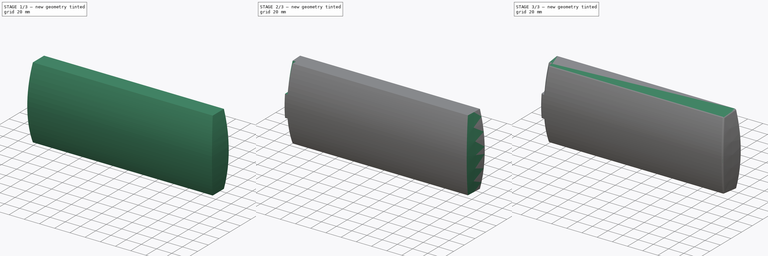
[diagram: build sequence overview — one tinted view per stage of 3, left to right]
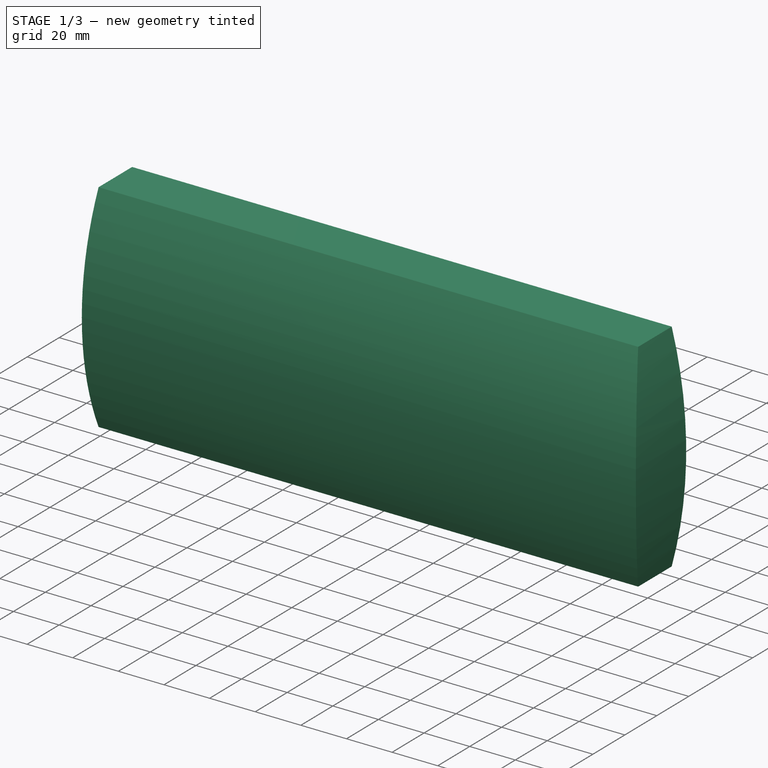
[diagram: stage 1 of 3 — iso view after this stage's code; geometry added in this stage tinted green]
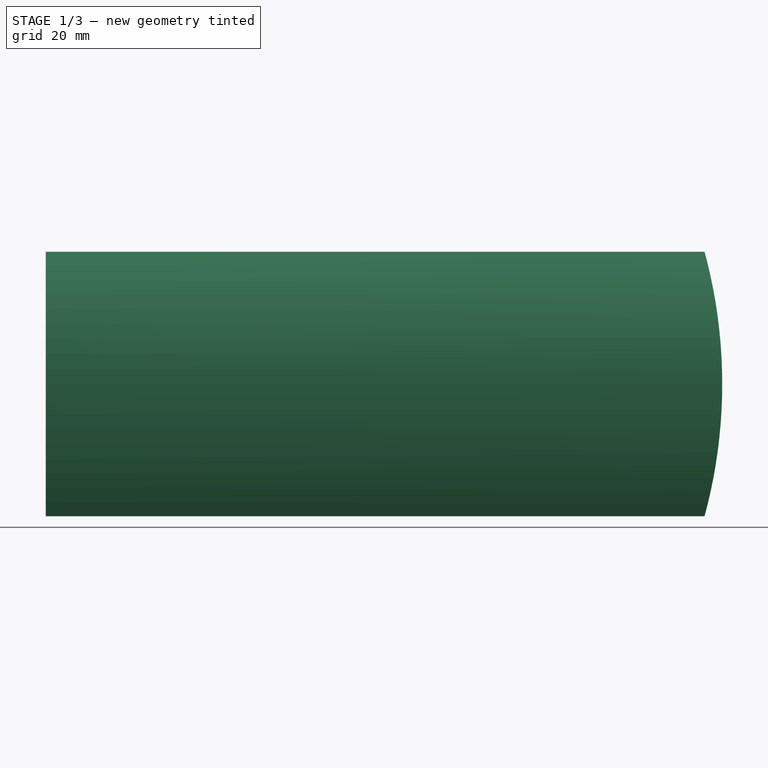
[diagram: stage 1 of 3 — front view after this stage's code; geometry added in this stage tinted green]
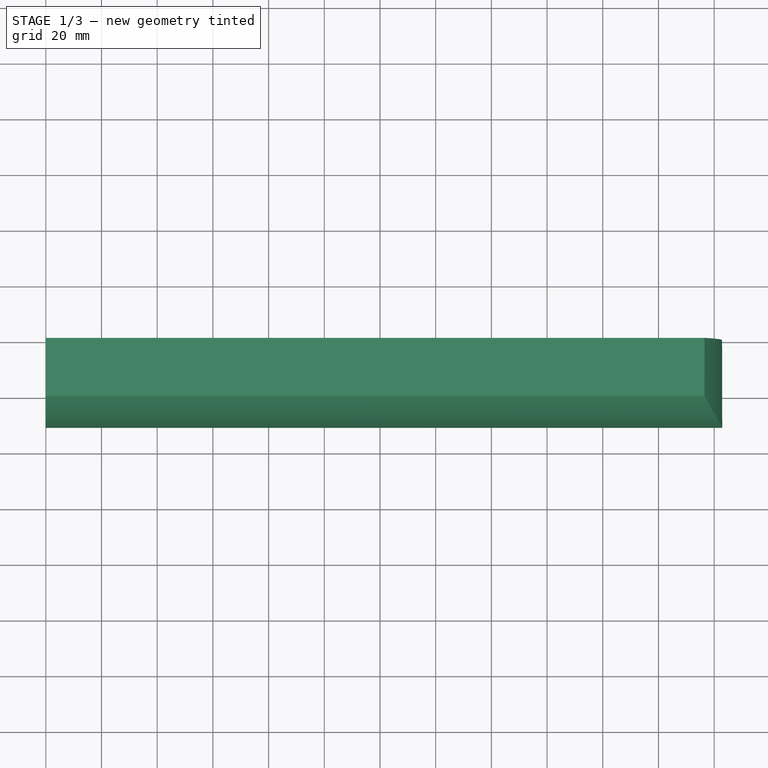
[diagram: stage 1 of 3 — top view after this stage's code; geometry added in this stage tinted green]
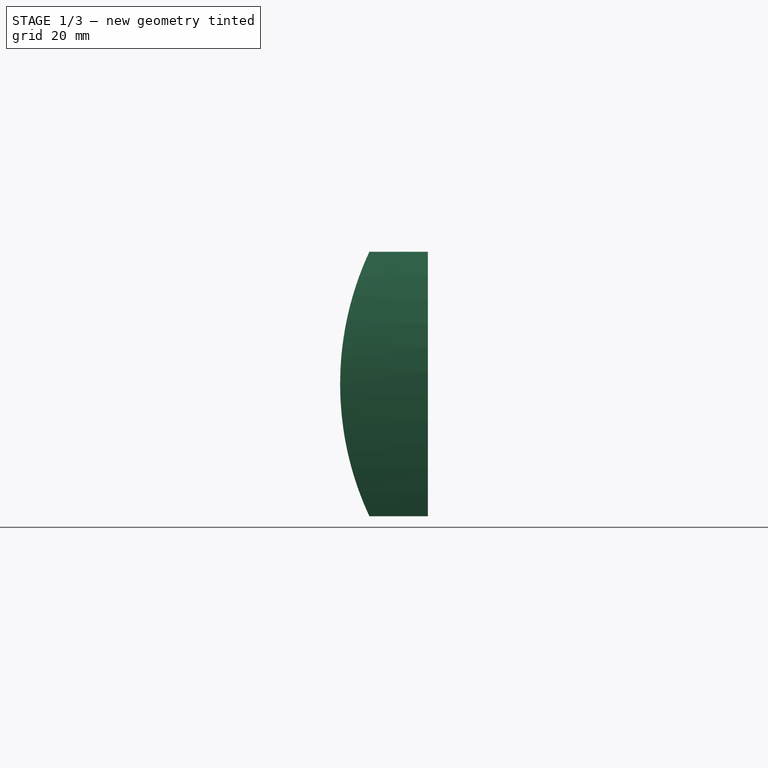
[diagram: stage 1 of 3 — right view after this stage's code; geometry added in this stage tinted green]
FCSTD DOCUMENT  (FreeCAD 0.16R6704 (Git))
Label: speaker-front-2
License: All rights reserved
LicenseURL: http://en.wikipedia.org/wiki/All_rights_reserved
objects: Sketcher::SketchObject×3, PartDesign::Draft×3, PartDesign::Pocket×2, PartDesign::Pad×1, Part::Fillet×1
note: 13 computed .brp shape members not serialized (recipe doc carries the construction recipe); baked Part::Feature solids carry a one-line shape summary decoded from their .brp

FEATURE [Sketcher::SketchObject] Sketch
  Placement = pos=(0,0,0) rot=(1,0,0;1.5708rad)
  sketch-geometry (8):
    g0: LineSegment StartX=0 StartY=0 StartZ=0 EndX=236.53 EndY=0 EndZ=0
    g1: LineSegment StartX=236.53 StartY=95 StartZ=0 EndX=0 EndY=95 EndZ=0
    g2: LineSegment StartX=0 StartY=95 StartZ=0 EndX=0 EndY=0 EndZ=0
    g3: GeomPoint [constr] X=242.88 Y=47.5 Z=0
    g4: ArcOfCircle CenterX=62.0475 CenterY=47.5 CenterZ=0 NormalX=0 NormalY=0 NormalZ=1 Radius=180.832 StartAngle=6.01739 EndAngle=6.54898
    g5: GeomPoint [constr] X=118.265 Y=95 Z=0
    g6: GeomPoint [constr] X=118.265 Y=0 Z=0
    g7: GeomPoint [constr] X=0 Y=47.5 Z=0
  constraints (20):
    c: Coincident(g1,g2)
    c: Coincident(g2,g0)
    c: Horizontal(g0)
    c: Horizontal(g1)
    c: Vertical(g2)
    c: Coincident(g0,g-1)
    c: Coincident(g4,g0)
    c: PointOnObject(g3,g4)
    c: PointOnObject(g5,g1)
    c: PointOnObject(g6,g0)
    c: PointOnObject(g7,g2)
    c: DistanceY(g6,g5) = 95
    c: Symmetric(g1,g1,g5)
    c: Symmetric(g-1,g0,g6)
    c: Symmetric(g-1,g1,g7)
    c: DistanceX(g7,g3) = 242.88
    c: DistanceY(g3,g7) = 0
    c: DistanceX(g1,g3) = 6.35
    c: DistanceX(g0,g1) = 0
    c: Coincident(g4,g1)
FEATURE [PartDesign::Pad] Pad
  Length = 31.5
  Length2 = 100
  Placement = pos=(0,0,0) rot=(1,0,0;1.5708rad)
  Sketch = -> Sketch
  Type = 0
FEATURE [Sketcher::SketchObject] Sketch003
  ExternalGeometry = -> [Pad]
  Placement = pos=(0,0,0) rot=(0.707107,0,-0.707107;3.14159rad)
  Support = -> Pad [Face4]
  sketch-geometry (7):
    g0: GeomPoint [constr] X=-95 Y=21 Z=0
    g1: GeomPoint [constr] X=0 Y=21 Z=0
    g2: GeomPoint [constr] X=-47.5 Y=31.5 Z=0
    g3: ArcOfCircle CenterX=-47.5 CenterY=-81.1905 CenterZ=0 NormalX=0 NormalY=0 NormalZ=1 Radius=112.69 StartAngle=1.13569 EndAngle=2.0059
    g4: LineSegment StartX=-95 StartY=21 StartZ=0 EndX=-95 EndY=61 EndZ=0
    g5: LineSegment StartX=0 StartY=21 StartZ=0 EndX=0 EndY=61 EndZ=0
    g6: LineSegment StartX=0 StartY=61 StartZ=0 EndX=-95 EndY=61 EndZ=0
  constraints (17):
    c: PointOnObject(g0,g-4)
    c: PointOnObject(g1,g-5)
    c: DistanceY(g0,g-4) = 10.5
    c: DistanceY(g1,g-5) = 10.5
    c: PointOnObject(g2,g-6)
    c: Symmetric(g-6,g-6,g2)
    c: Coincident(g3,g0)
    c: Coincident(g3,g1)
    c: PointOnObject(g2,g3)
    c: Coincident(g4,g0)
    c: Vertical(g4)
    c: Coincident(g5,g1)
    c: Vertical(g5)
    c: Coincident(g6,g5)
    c: Coincident(g6,g4)
    c: Horizontal(g6)
    c: DistanceY(g0,g4) = 40
FEATURE [PartDesign::Pocket] Pocket001
  Length = 250
  Placement = pos=(0,0,0) rot=(1,0,0;1.5708rad)
  Sketch = -> Sketch003
  Type = 0
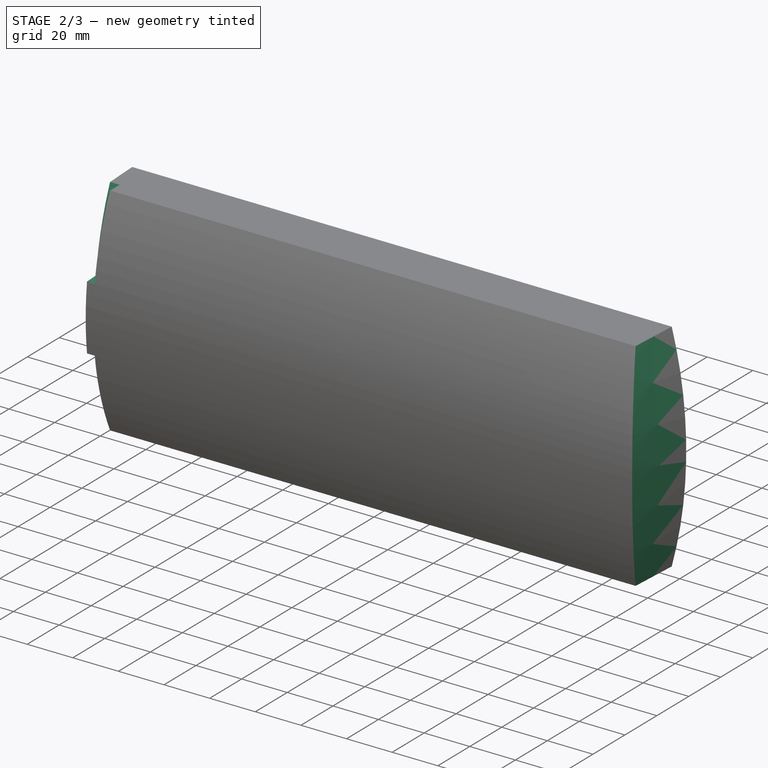
[diagram: stage 2 of 3 — iso view after this stage's code; geometry added in this stage tinted green]
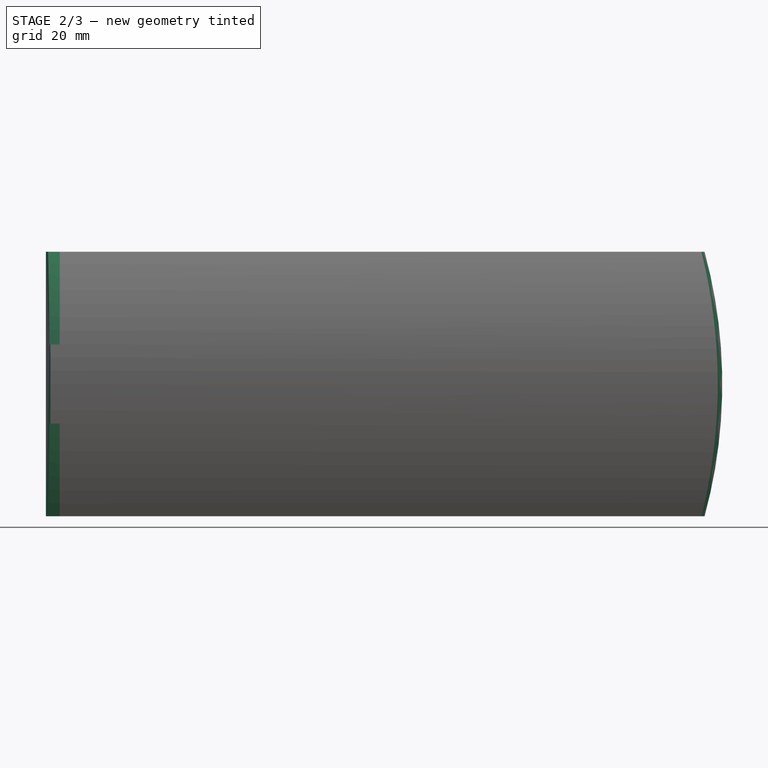
[diagram: stage 2 of 3 — front view after this stage's code; geometry added in this stage tinted green]
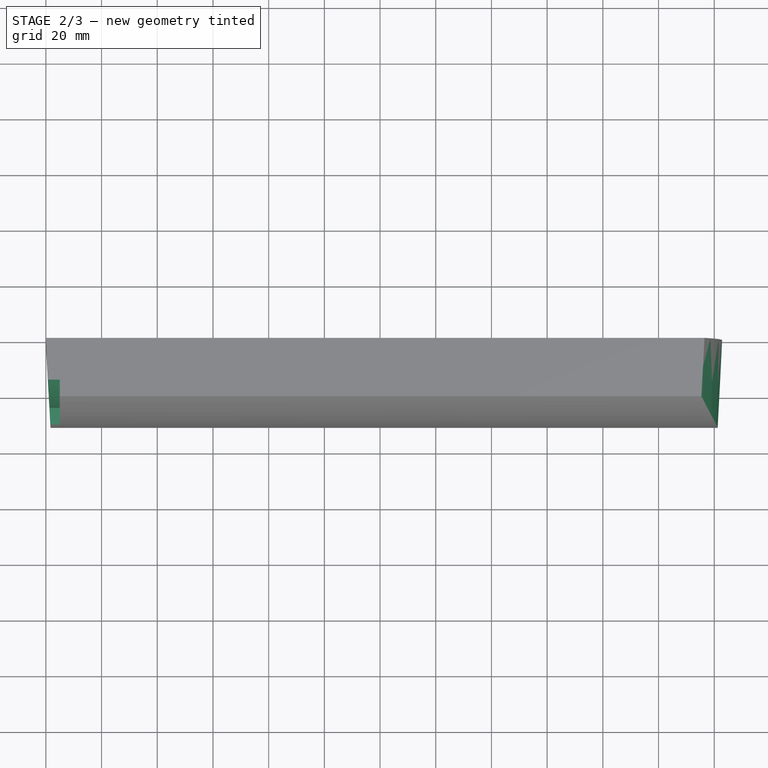
[diagram: stage 2 of 3 — top view after this stage's code; geometry added in this stage tinted green]
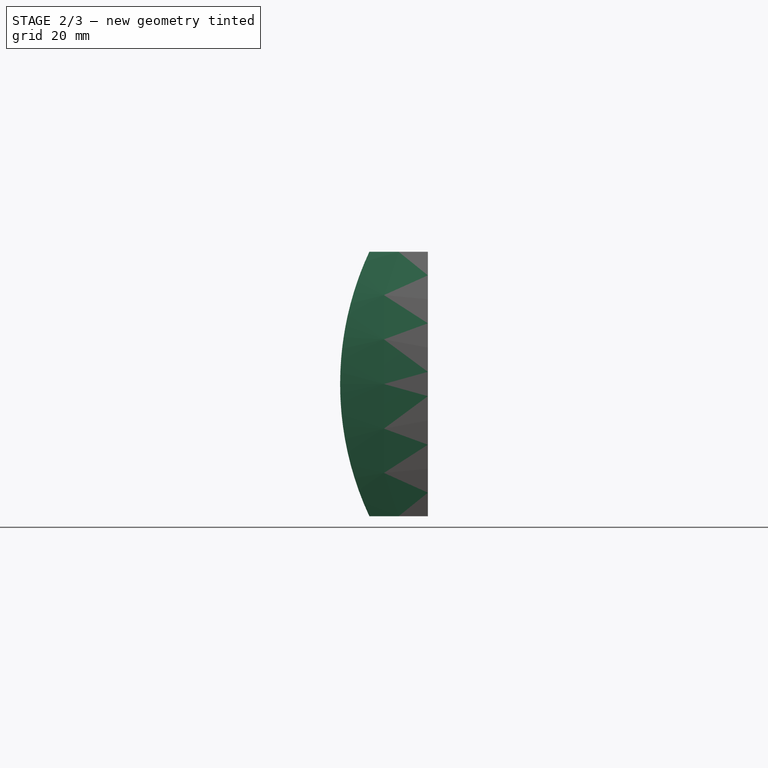
[diagram: stage 2 of 3 — right view after this stage's code; geometry added in this stage tinted green]
FEATURE [Sketcher::SketchObject] Sketch004
  ExternalGeometry = -> [Pocket001]
  Placement = pos=(0,0,0) rot=(0.707107,0,-0.707107;3.14159rad)
  Support = -> Pocket001 [Face5]
  sketch-geometry (13):
    g0: GeomPoint [constr] X=-95 Y=15 Z=0
    g1: GeomPoint [constr] X=0 Y=15 Z=0
    g2: GeomPoint [constr] X=-47.5 Y=-87.1905 Z=0
    g3: GeomPoint [constr] X=-61.75 Y=24.5954 Z=0
    g4: GeomPoint [constr] X=-33.25 Y=24.5954 Z=0
    g5: LineSegment StartX=-61.75 StartY=24.5954 StartZ=0 EndX=-61.75 EndY=65 EndZ=0
    g6: LineSegment StartX=-95 StartY=15 StartZ=0 EndX=-95 EndY=65 EndZ=0
    g7: LineSegment StartX=-33.25 StartY=24.5954 StartZ=0 EndX=-33.25 EndY=65 EndZ=0
    g8: LineSegment StartX=0 StartY=15 StartZ=0 EndX=0 EndY=65 EndZ=0
    g9: LineSegment StartX=0 StartY=65 StartZ=0 EndX=-33.25 EndY=65 EndZ=0
    g10: LineSegment StartX=-95 StartY=65 StartZ=0 EndX=-61.75 EndY=65 EndZ=0
    g11: ArcOfCircle CenterX=-47.5 CenterY=-87.1905 CenterZ=0 NormalX=0 NormalY=0 NormalZ=1 Radius=112.69 StartAngle=1.69759 EndAngle=2.0059
    g12: ArcOfCircle CenterX=-47.5 CenterY=-87.1905 CenterZ=0 NormalX=0 NormalY=0 NormalZ=1 Radius=112.69 StartAngle=1.13569 EndAngle=1.444
  constraints (30):
    c: PointOnObject(g0,g-3)
    c: PointOnObject(g1,g-4)
    c: DistanceY(g0,g-3) = 6
    c: DistanceY(g1,g-4) = 6
    c: Coincident(g5,g3)
    c: Vertical(g5)
    c: Coincident(g6,g0)
    c: Vertical(g6)
    c: Coincident(g7,g4)
    c: Vertical(g7)
    c: Coincident(g8,g1)
    c: Vertical(g8)
    c: Coincident(g9,g8)
    c: Coincident(g9,g7)
    c: Horizontal(g9)
    c: Coincident(g10,g6)
    c: Coincident(g10,g5)
    c: Horizontal(g10)
    c: DistanceY(g0,g6) = 50
    c: DistanceY(g1,g8) = 50
    c: DistanceY(g-7,g2) = -6
    c: Coincident(g11,g2)
    c: Coincident(g11,g0)
    c: Coincident(g11,g3)
    c: Coincident(g12,g2)
    c: Coincident(g12,g1)
    c: Coincident(g12,g4)
    c: DistanceX(g2,g-7) = 0
    c: DistanceX(g3,g-7) = 14.25
    c: DistanceX(g-7,g4) = 14.25
FEATURE [PartDesign::Pocket] Pocket002
  Length = 5
  Placement = pos=(0,0,0) rot=(1,0,0;1.5708rad)
  Sketch = -> Sketch004
  Type = 0
FEATURE [PartDesign::Draft] Draft007
  Angle = 3
  Base = -> Pocket002 [Face3]
  NeutralPlane = -> Pocket002 [Face2]
  Placement = pos=(0,0,0) rot=(1,0,0;1.5708rad)
  PullDirection = -> Pocket002 [Edge10]
FEATURE [PartDesign::Draft] Draft008
  Angle = 3.03
  Base = -> Draft007 [Face7]
  NeutralPlane = -> Draft007 [Face2]
  Placement = pos=(0,0,0) rot=(1,0,0;1.5708rad)
  PullDirection = -> Draft007 [Edge25]
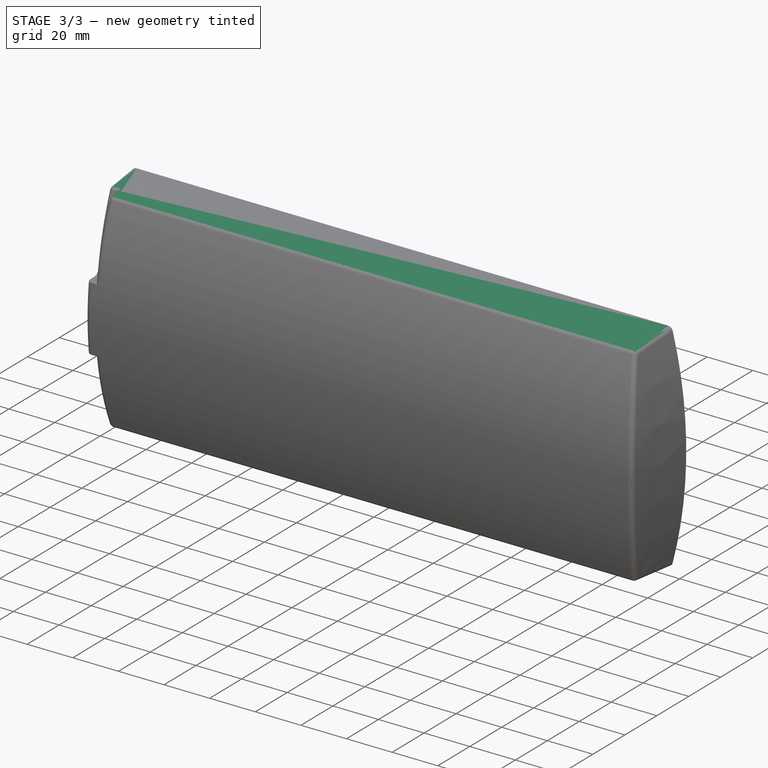
[diagram: stage 3 of 3 — iso view after this stage's code; geometry added in this stage tinted green]
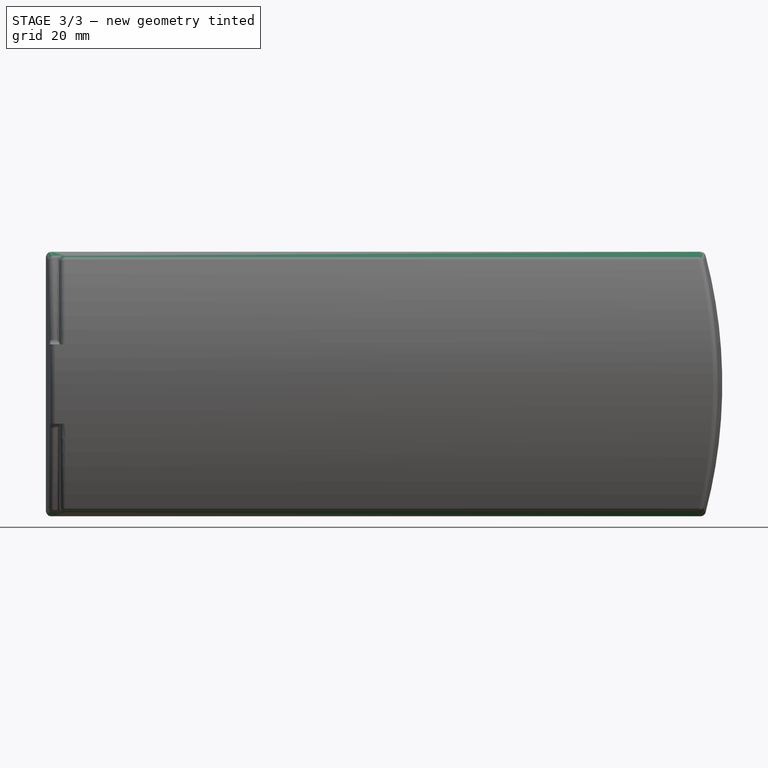
[diagram: stage 3 of 3 — front view after this stage's code; geometry added in this stage tinted green]
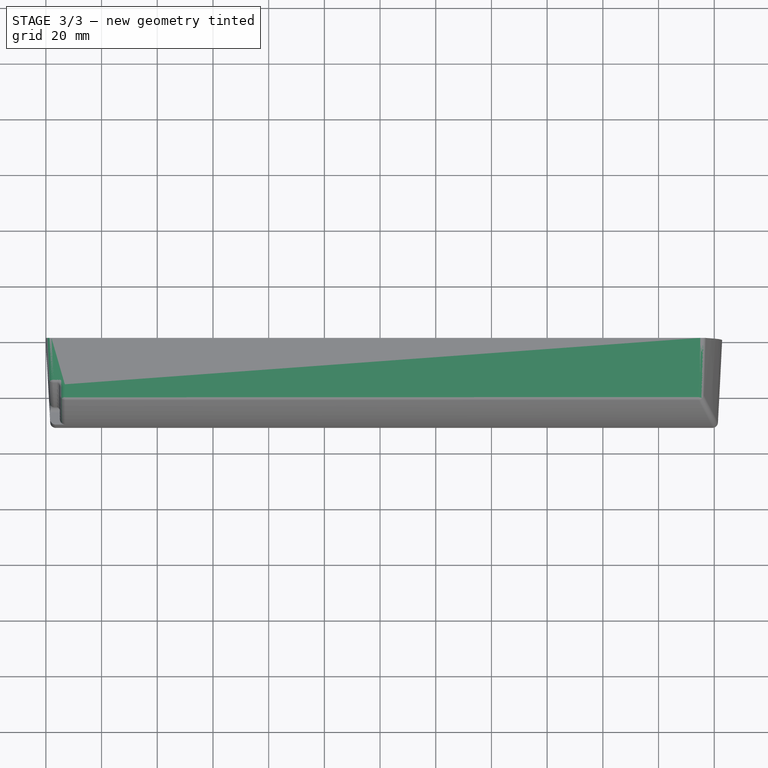
[diagram: stage 3 of 3 — top view after this stage's code; geometry added in this stage tinted green]
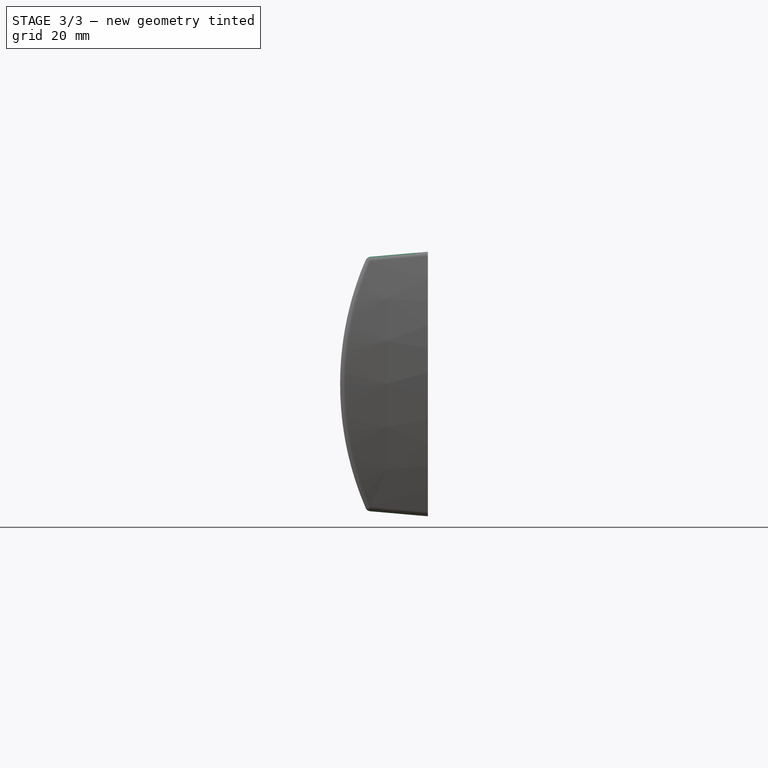
[diagram: stage 3 of 3 — right view after this stage's code; geometry added in this stage tinted green]
FEATURE [PartDesign::Draft] Draft009
  Angle = 5
  Base = -> Draft008 [Face8,Face1]
  NeutralPlane = -> Draft008 [Face2]
  Placement = pos=(0,0,0) rot=(1,0,0;1.5708rad)
  PullDirection = -> Draft008 [Edge25]
FEATURE [Part::Fillet] Fillet
  Base = -> Draft009
  Edges = 22 edges: [Edge2 r=2,Edge3 r=2,Edge4 r=2,Edge5 r=2,Edge6 r=2,Edge10 r=2,Edge11 r=2,Edge12 r=2,Edge13 r=2,Edge15 r=2,Edge18 r=1,Edge19 r=2,Edge20 r=2,Edge22 r=2,Edge24 r=2,Edge25 r=2,Edge26 r=2,Edge27 r=2,Edge28 r=2,Edge30 r=2,Edge32 r=2,Edge33 r=1]
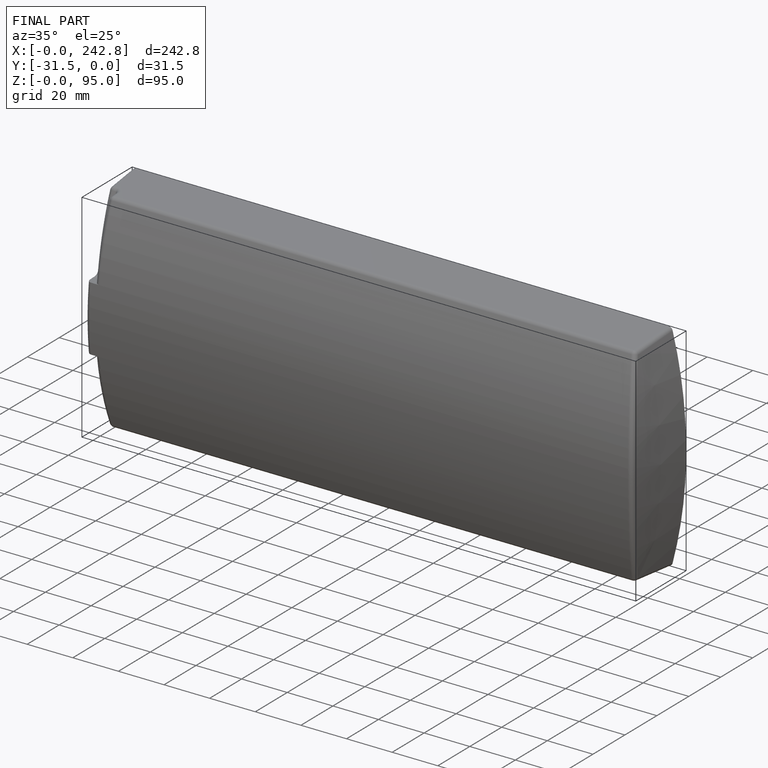
[diagram: finished part — iso view with bounding-box wireframe]
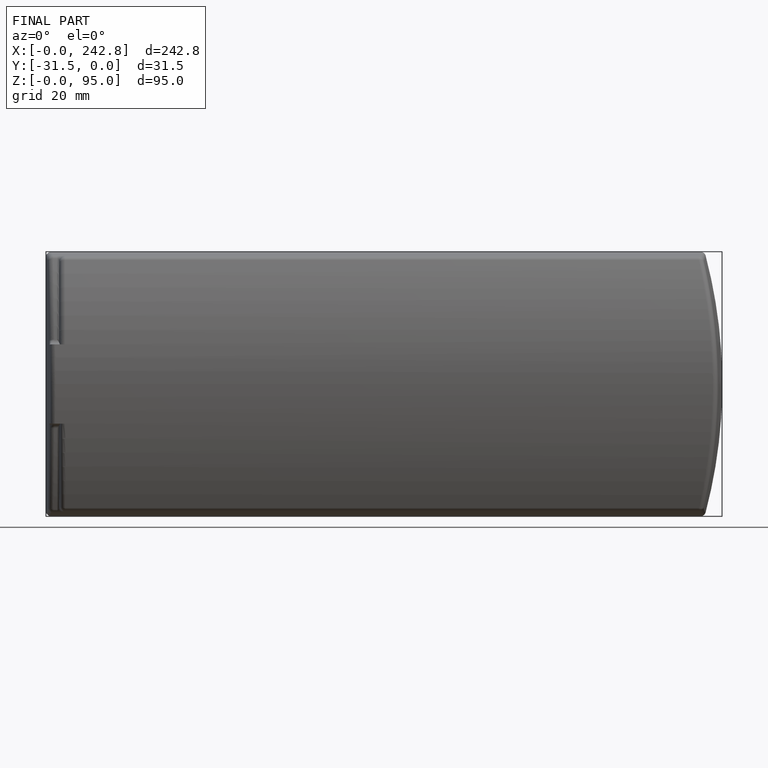
[diagram: finished part — front view with bounding-box wireframe]
